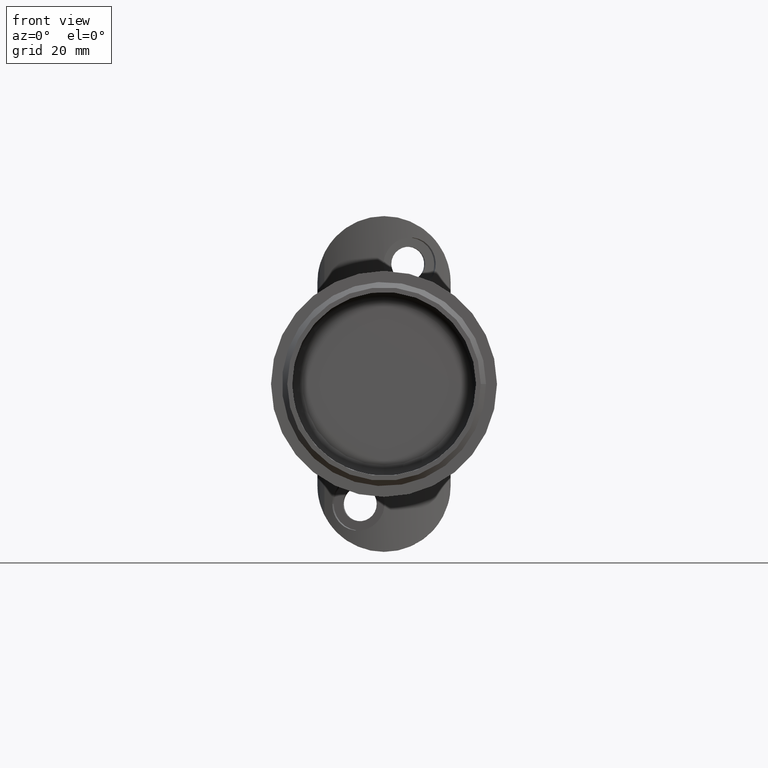
[diagram: clean part render]
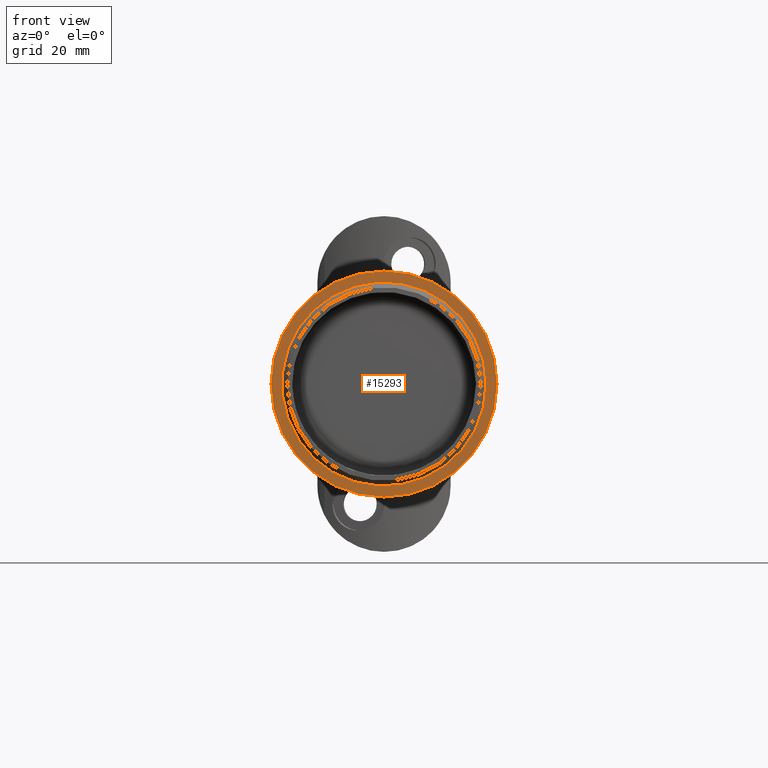
[diagram: same view with one face highlighted and labeled with its STEP entity id]
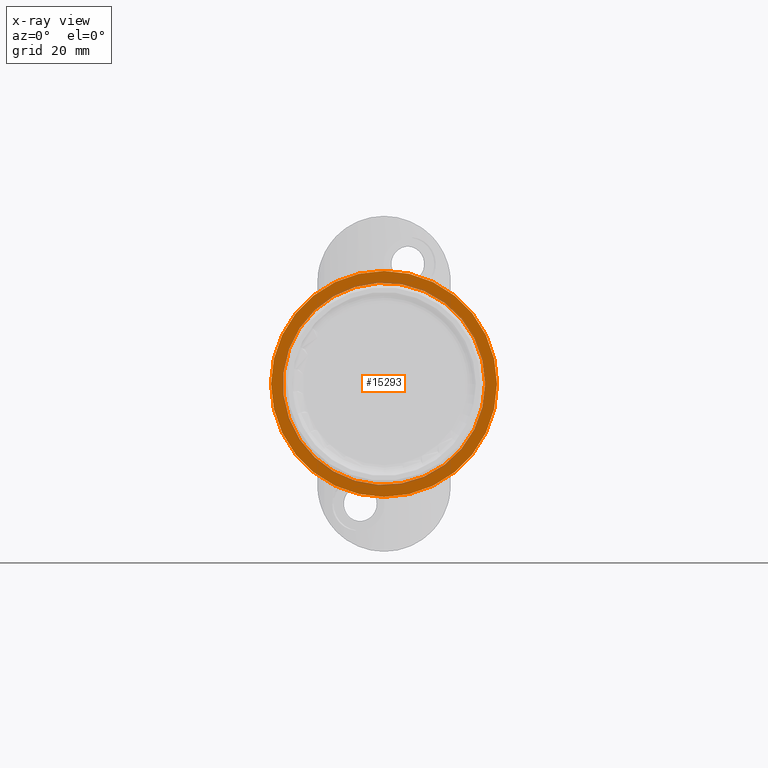
[diagram: x-ray of the same camera — body ghosted, the highlighted face saturated]
A machine part, front view. The second image highlights one B-rep face of the part: STEP entity #15293.
The next image is the same camera in x-ray: the body ghosted, the highlighted face saturated — about 8% of this face is hidden behind the body in this view.
In plain terms, the highlighted planar face has unit normal (-0, -1, 0).
Its self-contained STEP definition (entity closure, byte-faithful):
#300 = CARTESIAN_POINT ( 'NONE',  ( -7.128072395037157955E-15, 30.00000000000000000, 0.000000000000000000 ) ) ;
#824 = DIRECTION ( 'NONE',  ( -9.504096526716212841E-17, -1.000000000000000000, -0.000000000000000000 ) ) ;
#1547 = EDGE_LOOP ( 'NONE', ( #11888 ) ) ;
#1770 = CIRCLE ( 'NONE', #13744, 21.20000000000000995 ) ;
#2725 = CARTESIAN_POINT ( 'NONE',  ( 18.94999999999999929, 30.00000000000000000, 0.000000000000000000 ) ) ;
#2980 = EDGE_CURVE ( 'NONE', #11117, #11117, #1770, .T. ) ;
#3093 = FACE_OUTER_BOUND ( 'NONE', #5762, .T. ) ;
#3994 = ORIENTED_EDGE ( 'NONE', *, *, #2980, .T. ) ;
#4205 = VERTEX_POINT ( 'NONE', #4378 ) ;
#4378 = CARTESIAN_POINT ( 'NONE',  ( 18.94999999999999929, 29.99999999999999645, 0.000000000000000000 ) ) ;
#4552 = AXIS2_PLACEMENT_3D ( 'NONE', #2725, #11061, #5099 ) ;
#5050 = PLANE ( 'NONE',  #4552 ) ;
#5099 = DIRECTION ( 'NONE',  ( 1.000000000000000000, -9.504096526716212841E-17, 0.000000000000000000 ) ) ;
#5332 = CIRCLE ( 'NONE', #11272, 18.95000000000000639 ) ;
#5762 = EDGE_LOOP ( 'NONE', ( #3994 ) ) ;
#6994 = EDGE_CURVE ( 'NONE', #4205, #4205, #5332, .T. ) ;
#8653 = DIRECTION ( 'NONE',  ( -9.504096526716212841E-17, -1.000000000000000000, -0.000000000000000000 ) ) ;
#11061 = DIRECTION ( 'NONE',  ( -9.504096526716212841E-17, -1.000000000000000000, 0.000000000000000000 ) ) ;
#11117 = VERTEX_POINT ( 'NONE', #15241 ) ;
#11272 = AXIS2_PLACEMENT_3D ( 'NONE', #300, #824, #14674 ) ;
#11888 = ORIENTED_EDGE ( 'NONE', *, *, #6994, .F. ) ;
#13162 = FACE_BOUND ( 'NONE', #1547, .T. ) ;
#13321 = DIRECTION ( 'NONE',  ( 1.000000000000000000, -1.636531581110194670E-16, 0.000000000000000000 ) ) ;
#13744 = AXIS2_PLACEMENT_3D ( 'NONE', #14574, #8653, #13321 ) ;
#14574 = CARTESIAN_POINT ( 'NONE',  ( -7.128072395037157955E-15, 30.00000000000000711, 0.000000000000000000 ) ) ;
#14674 = DIRECTION ( 'NONE',  ( 1.000000000000000000, -1.830842718709030548E-16, 0.000000000000000000 ) ) ;
#15241 = CARTESIAN_POINT ( 'NONE',  ( 21.20000000000000284, 30.00000000000000355, 0.000000000000000000 ) ) ;
#15293 = ADVANCED_FACE ( 'NONE', ( #3093, #13162 ), #5050, .T. ) ;